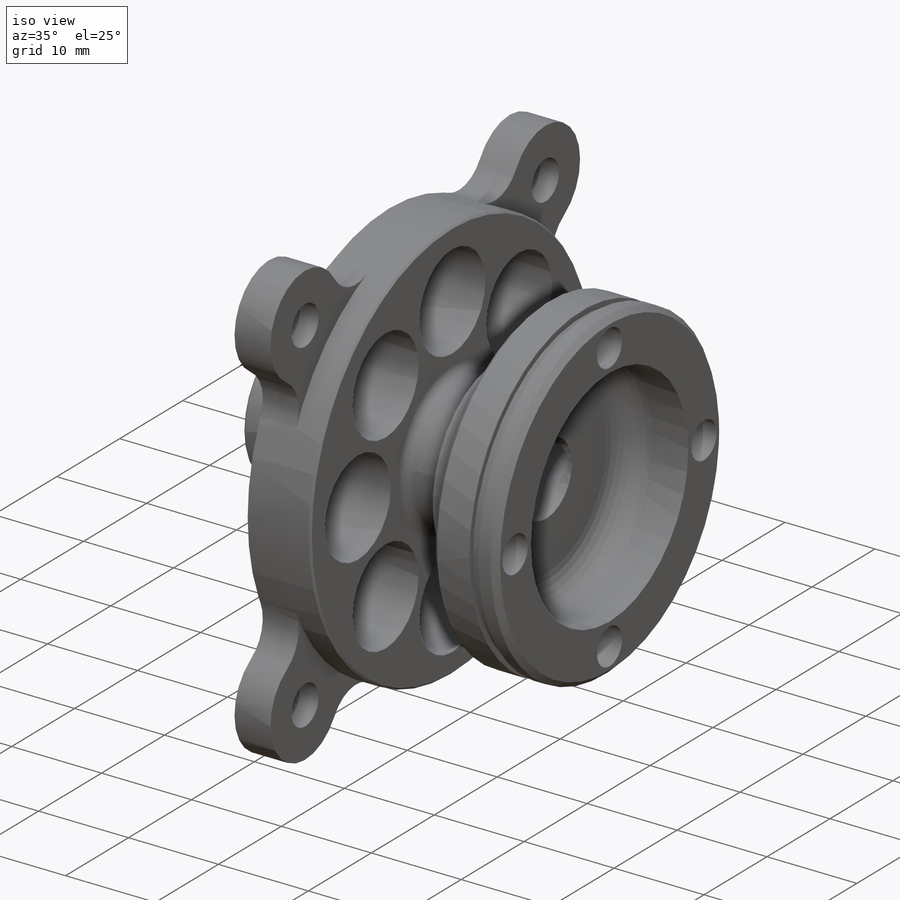
[diagram: iso view]
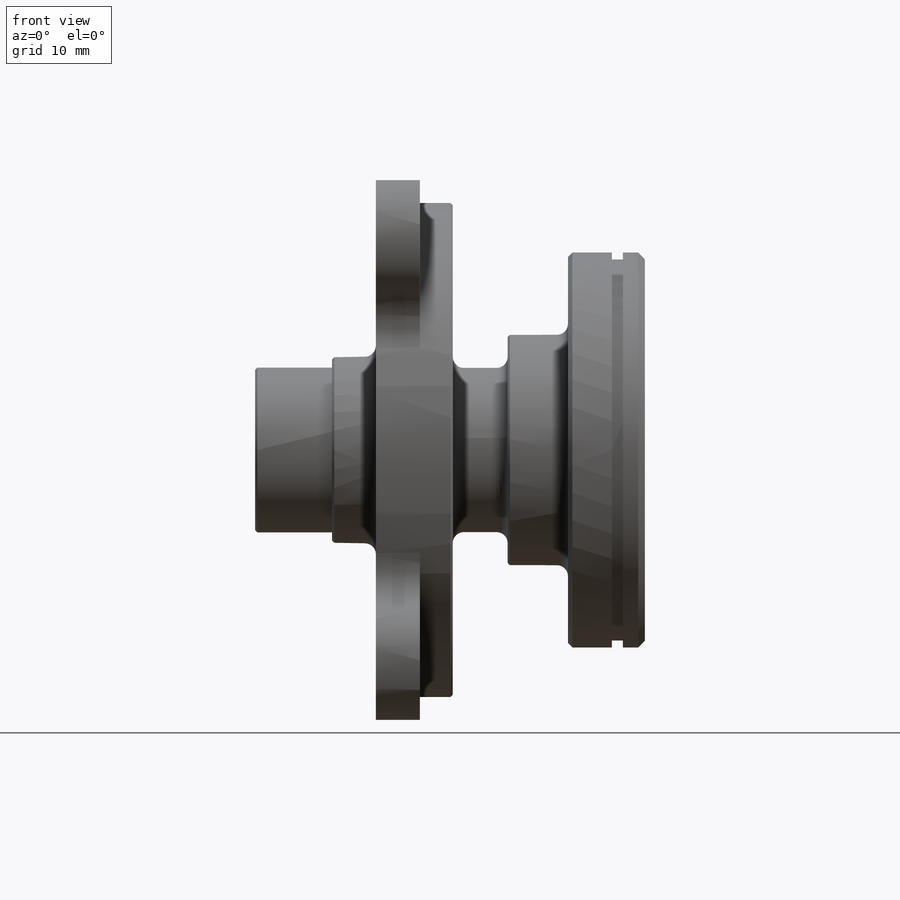
[diagram: front view]
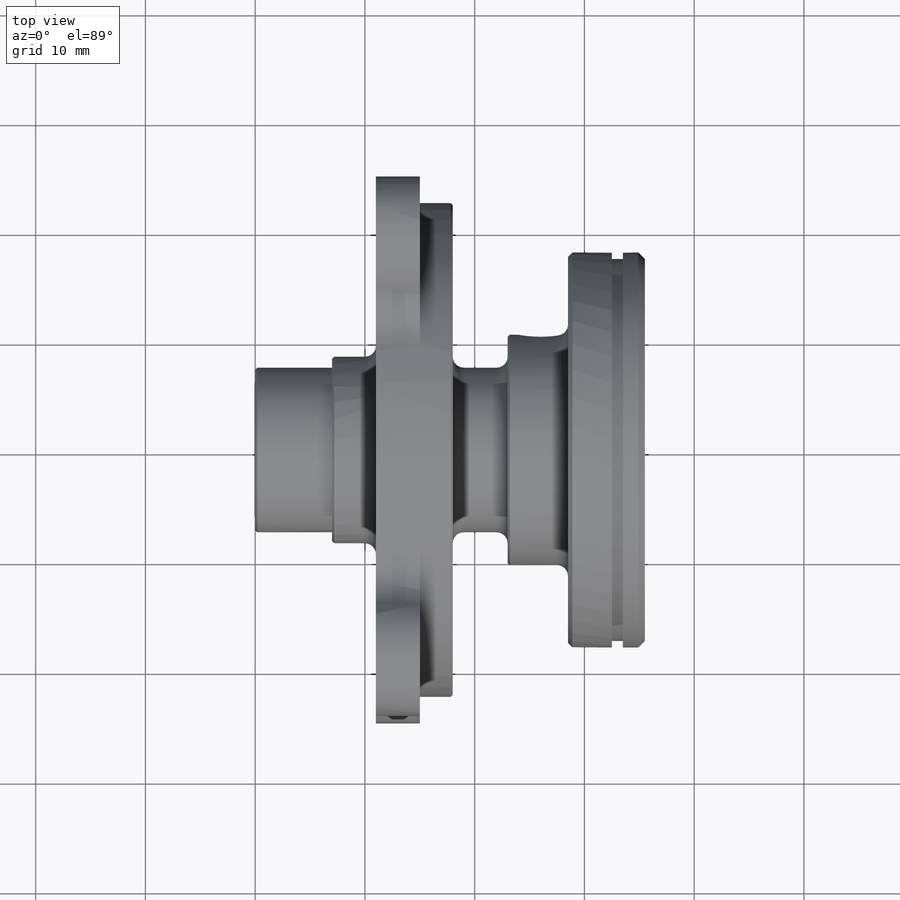
[diagram: top view]
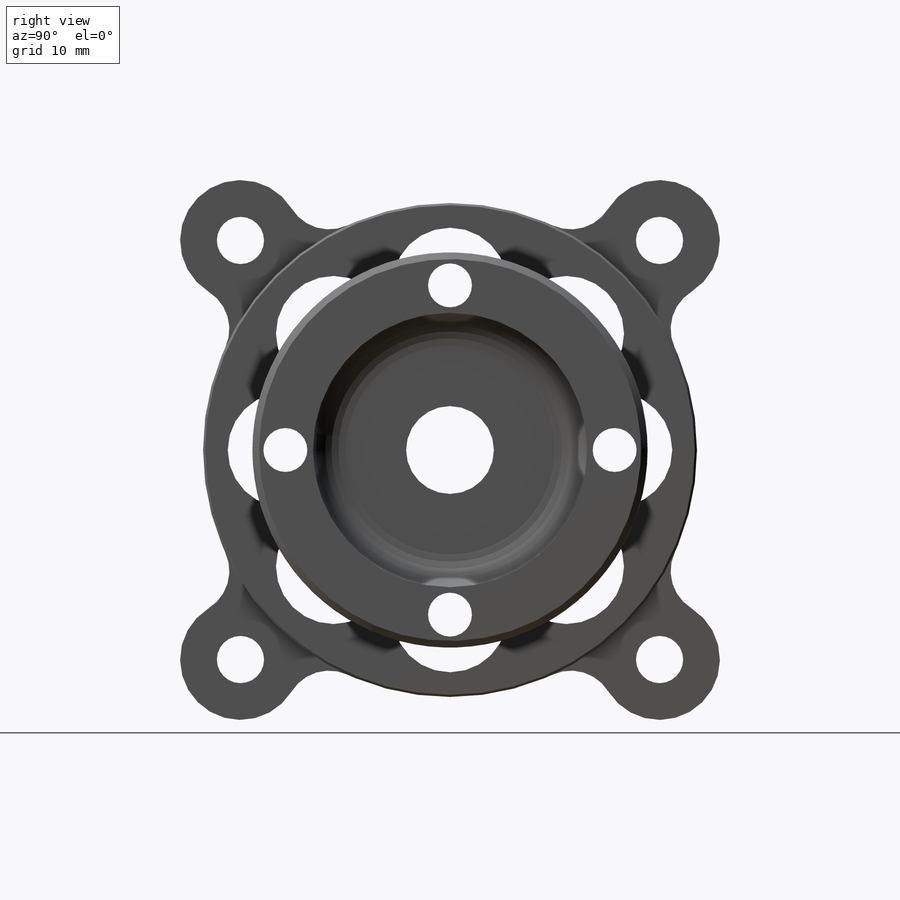
[diagram: right view]
SOLIDWORKS PART (.sldprt)
format: sldprt  version: not decoded by parser v0  size: 640,000 bytes
history: native  units: mm
features: sketch x15, plane x6, chamfer x4, fillet x3, hole x3, cut_extrude x2, material x1, revolve x1, pattern_circular x1 (+8 scaffold rows collapsed)
feature tree (44):
  scaffold x8  (default folders/planes/origin — collapsed)
  material  "7075-T6 (SN)"
  plane  "Ebene vorne"
  plane  "Ebene oben"
  plane  "Ebene rechts"
  sketch  "Skizze1"  dims[c1.D26=3.0mm c1.D1=7.0mm c1.D2=7.5mm c1.D3=6.0mm c1.D4=12.0mm c1.D5=~27.918257mm c1.D6=8.0mm c2.D5=44.0mm c2.D6=2.5mm c2.D7=2.5mm c2.D2=7.5mm c2.D8=4.0mm c2.D1=7.0mm c3.D8=4.0mm c3.D9=7.5mm c3.D10=71.0mm c3.D11=13.5mm c3.D12=12.0mm c3.D13=1.0mm c3.D14=6.5mm c3.D5=24.5mm c3.D7=35.5mm c4.D10=32.5mm c4.D15=6.0mm c4.D16=22.5mm c4.D17=4.0mm c4.D18=3.0mm c4.D9=8.5mm c4.D3=0.0mm c4.D12=0.0mm c4.D13=4.0mm c4.D4=7.5mm c4.D6=18.0mm c4.D11=7.0mm c4.D14=10.5mm c5.D15=23.0mm c5.D19=1.5mm c5.D20=18.0mm c5.D21=1.0mm c5.D22=2.0mm c5.D23=0.6mm c5.D24=12.5mm c5.D25=7.0mm c5.D27=18.0mm]
  revolve  "Rotation1"  Angle=360deg
  sketch  "Skizze8"  dims[D1=22.5deg D2=22.5deg D3=22.5deg]
  fillet  "Verrundung1"  Radius=1mm
  fillet  "Verrundung2"  Radius=1mm
  chamfer  "Fase1"  Distance=0.2mm Angle=45deg
  sketch  "Skizze9"  dims[D1=30.0mm]
  sketch  "Skizze18"  dims[D1=30.0mm D2=10.5mm]
  chamfer  "Fase4"  Distance=0.6mm Angle=45deg
  plane  "Ebene3"
  cut_extrude  "Schnitt-Linear austragen7"  Depth=10mm
  pattern_circular  "Kreismuster1"  Count=8 Angle=360deg
  chamfer  "Fase5"  Distance=0.4mm Angle=45deg
  sketch  "Skizze26"
  hole  "Ø4.0 (4) Durchmesser Bohrung2"  Diameter=4mm Depth=24.5mm
  sketch  "3D-Skizze2"
  sketch  "Skizze29"  dims[hole-wizard template sketch: 59 standard entries collapsed; hole parameters kept: c18.Bohrerdurchmesser=4.0mm c18.Bohrungstiefe=24.5mm]
  chamfer  "Fase6"  Distance=0.2mm Angle=45deg
  sketch  "Skizze30"  dims[c1.D1=45.0mm c1.D2=5.5mm c1.D4=4.0mm c1.D3=~37.352335mm c2.D3=135.0deg c2.D5=4.0]
  cut_extrude  "Schnitt-Linear austragen9"  [1 undecoded]
  hole  "Formsenkung für M4 Senkschraube mit Innensechskant1"  Diameter=4.3mm Depth=24.5mm
  sketch  "3D-Skizze3"
  sketch  "Skizze34"  dims[hole-wizard template sketch: 54 standard entries collapsed; hole parameters kept: c17.Bohrerdurchmesser=4.3mm c17.Bohrungstiefe=24.5mm c17.Senkdurchmesser (Oben)=8.1mm c17.D4=~3.666174mm c17.Senkwinkel (Oben)=90.0deg]
  plane  "Ebene4"  Offset=10.5mm
  sketch  "Skizze37"
  sketch  "Skizze36"  dims[D1=2.4mm]
  sketch  "Skizze49"
  plane  "Ebene5"
  hole  "M5 Gewindebohrung5"  Diameter=4.2mm Depth=14mm
  sketch  "3D-Skizze7"  dims[D1=3.0mm]
  sketch  "Skizze53"  dims[hole-wizard template sketch: 46 standard entries collapsed; hole parameters kept: c15.Bohrerdurchmesser=4.2mm c15.Bohrungstiefe=14.0mm c15.D3=~14.816244mm c15.Spitzenwinkel=118.0deg]
  fillet  "Verrundung3"  Radius=1mm
decode coverage: 23 of 29 modeling features carry decoded parameters
note: ~ marks probable driven/reference dimensions
note: 1 parameter value undecoded
note: suppression state not decoded; provenance and decode notes live in map.json
